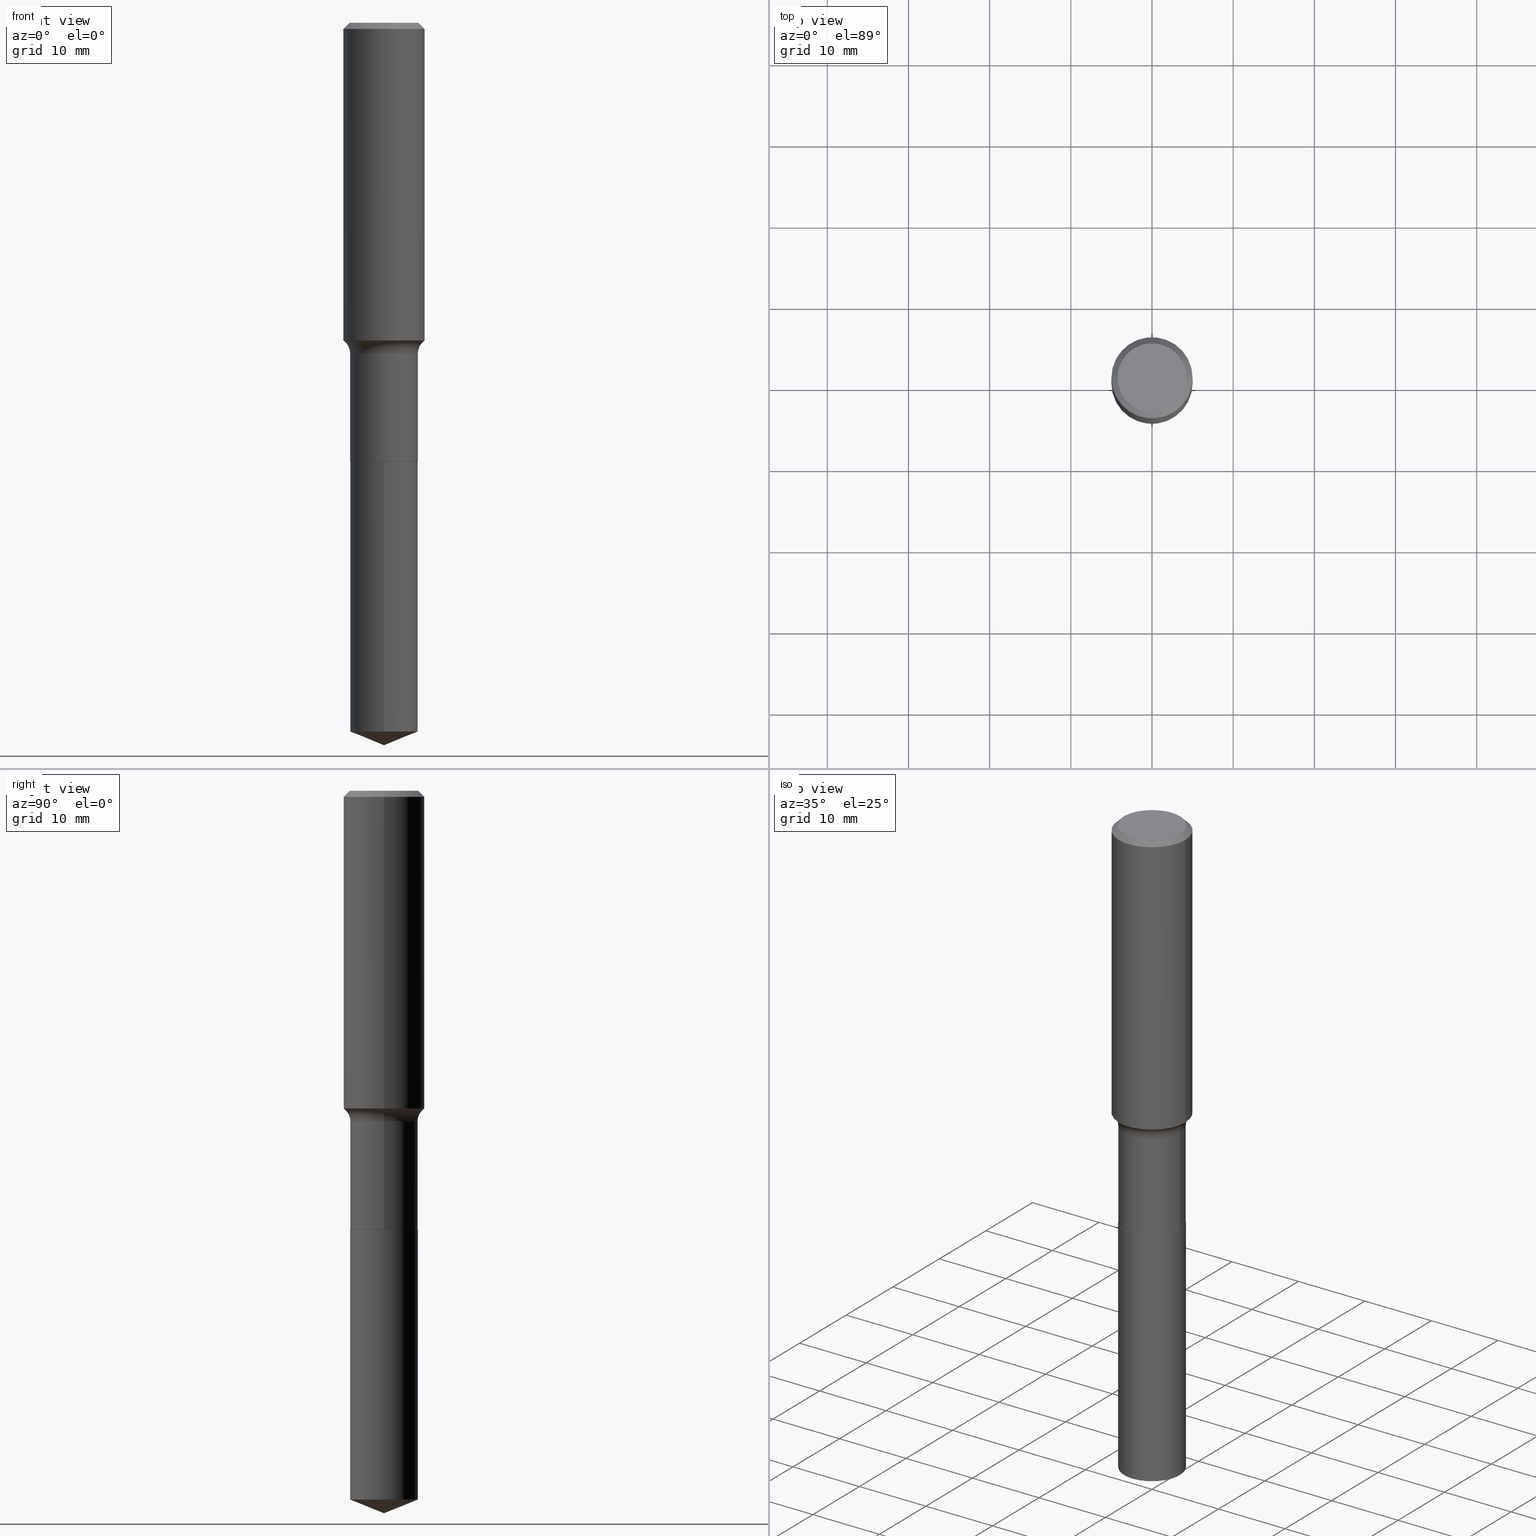
[diagram: canonical four-view strip — front | top / right | iso, engineering-drawing reading convention]
A machine part, canonical four-view strip (front | top / right | iso — engineering-drawing reading convention). The complete STEP part file that produces these views, byte-faithful:
ISO-10303-21;
HEADER;
FILE_DESCRIPTION (( 'STEP AP203' ),
    '1' );
FILE_NAME ('56816.STEP',
    '2024-04-19T14:05:40',
    ( '' ),
    ( '' ),
    'SwSTEP 2.0',
    'SolidWorks 2023',
    '' );
FILE_SCHEMA (( 'CONFIG_CONTROL_DESIGN' ));
ENDSEC;

DATA;
#1 = AXIS2_PLACEMENT_3D ( 'NONE', #44, #156, #197 ) ;
#2 = CYLINDRICAL_SURFACE ( 'NONE', #263, 0.1968500000000001082 ) ;
#3 = CARTESIAN_POINT ( 'NONE',  ( 1.165645358014496035E-15, 0.1640499999999925906, -2.125900000000000567 ) ) ;
#4 = APPROVAL_STATUS ( 'not_yet_approved' ) ;
#5 = PLANE ( 'NONE',  #133 ) ;
#6 = ORIENTED_EDGE ( 'NONE', *, *, #440, .T. ) ;
#7 = DIRECTION ( 'NONE',  ( 1.000000000000000000, -6.982962677686265922E-15, 0.000000000000000000 ) ) ;
#8 = EDGE_LOOP ( 'NONE', ( #236, #464, #397 ) ) ;
#9 = ORIENTED_EDGE ( 'NONE', *, *, #111, .F. ) ;
#10 = CARTESIAN_POINT ( 'NONE',  ( 5.198822135068982087E-29, -7.422540178246643119E-15, -2.125899999999999679 ) ) ;
#11 = EDGE_CURVE ( 'NONE', #192, #313, #253, .T. ) ;
#12 = AXIS2_PLACEMENT_3D ( 'NONE', #353, #159, #55 ) ;
#13 = LINE ( 'NONE', #79, #163 ) ;
#14 = DIRECTION ( 'NONE',  ( 1.000000000000000000, -6.982962677686265922E-15, 4.876176775795935793E-29 ) ) ;
#15 = ORIENTED_EDGE ( 'NONE', *, *, #11, .T. ) ;
#16 = CARTESIAN_POINT ( 'NONE',  ( 5.198822135068982087E-29, -7.422540178246643119E-15, -2.125899999999999679 ) ) ;
#17 = EDGE_CURVE ( 'NONE', #229, #199, #350, .T. ) ;
#18 = DIRECTION ( 'NONE',  ( 1.000000000000000000, -6.982962677686266711E-15, 0.000000000000000000 ) ) ;
#19 = ORIENTED_EDGE ( 'NONE', *, *, #17, .F. ) ;
#20 = DIRECTION ( 'NONE',  ( -2.445468806185136597E-29, 3.491481338843145583E-15, 1.000000000000000000 ) ) ;
#21 = FACE_OUTER_BOUND ( 'NONE', #433, .T. ) ;
#22 = ORIENTED_EDGE ( 'NONE', *, *, #59, .F. ) ;
#23 = DIRECTION ( 'NONE',  ( -2.445468806185136597E-29, 3.491481338843145583E-15, 1.000000000000000000 ) ) ;
#24 = ORIENTED_EDGE ( 'NONE', *, *, #326, .F. ) ;
#25 = DIRECTION ( 'NONE',  ( -6.982962677686266711E-15, -1.000000000000000000, 3.498761904101810992E-15 ) ) ;
#26 = ADVANCED_FACE ( 'NONE', ( #335 ), #5, .F. ) ;
#27 = CARTESIAN_POINT ( 'NONE',  ( 0.000000000000000000, 0.000000000000000000, 0.000000000000000000 ) ) ;
#28 = AXIS2_PLACEMENT_3D ( 'NONE', #212, #219, #315 ) ;
#29 = CC_DESIGN_PERSON_AND_ORGANIZATION_ASSIGNMENT ( #117, #295, ( #262 ) ) ;
#30 = ORIENTED_EDGE ( 'NONE', *, *, #287, .T. ) ;
#31 = PERSON ( 'UNSPECIFIED', 'UNSPECIFIED', 'UNSPECIFIED', ('UNSPECIFIED'), ('UNSPECIFIED'), ('UNSPECIFIED') ) ;
#32 = DIRECTION ( 'NONE',  ( 1.000000000000000000, -6.982962677686266711E-15, 0.000000000000000000 ) ) ;
#33 = PERSON_AND_ORGANIZATION_ROLE ( 'design_owner' ) ;
#34 = AXIS2_PLACEMENT_3D ( 'NONE', #435, #147, #179 ) ;
#35 = AXIS2_PLACEMENT_3D ( 'NONE', #334, #308, #91 ) ;
#36 = ADVANCED_FACE ( 'NONE', ( #164 ), #2, .T. ) ;
#37 = CARTESIAN_POINT ( 'NONE',  ( 8.568824432335487934E-29, -1.223359197853089063E-14, -3.503899999999999793 ) ) ;
#38 = CALENDAR_DATE ( 2024, 19, 4 ) ;
#39 = CALENDAR_DATE ( 2024, 19, 4 ) ;
#40 = DIRECTION ( 'NONE',  ( 1.000000000000000000, -6.982962677686265922E-15, 0.000000000000000000 ) ) ;
#41 = DATE_AND_TIME ( #77, #47 ) ;
#42 = CARTESIAN_POINT ( 'NONE',  ( -0.1640500000000000014, 1.165645358014444365E-15, -8.069513015563172164E-30 ) ) ;
#43 = APPLICATION_CONTEXT ( 'configuration controlled 3d designs of mechanical parts and assemblies' ) ;
#44 = CARTESIAN_POINT ( 'NONE',  ( -8.771120741596703317E-28, 1.252238223672896506E-13, 35.86617874015747987 ) ) ;
#45 = AXIS2_PLACEMENT_3D ( 'NONE', #183, #258, #137 ) ;
#46 = ORIENTED_EDGE ( 'NONE', *, *, #319, .T. ) ;
#47 = LOCAL_TIME ( 10, 5, 40.00000000000000000, #456 ) ;
#48 = FACE_OUTER_BOUND ( 'NONE', #110, .T. ) ;
#49 = ORIENTED_EDGE ( 'NONE', *, *, #93, .F. ) ;
#50 = CARTESIAN_POINT ( 'NONE',  ( 7.220858017463213864E-31, -1.030947152326917226E-16, -0.02952750000000021330 ) ) ;
#51 = ORIENTED_EDGE ( 'NONE', *, *, #107, .T. ) ;
#52 = FACE_OUTER_BOUND ( 'NONE', #256, .T. ) ;
#53 = CONICAL_SURFACE ( 'NONE', #1, 97.44436430772888968, 1.186823891356146632 ) ;
#54 = ORIENTED_EDGE ( 'NONE', *, *, #72, .T. ) ;
#55 = DIRECTION ( 'NONE',  ( -6.982962677686265133E-15, -1.000000000000000000, 3.330506545156066257E-15 ) ) ;
#56 = ORIENTED_EDGE ( 'NONE', *, *, #427, .T. ) ;
#57 = DIRECTION ( 'NONE',  ( -2.445468806185136877E-29, 3.491481338843145188E-15, 1.000000000000000000 ) ) ;
#58 = DIRECTION ( 'NONE',  ( -2.445468806185136597E-29, 3.491481338843145583E-15, 1.000000000000000000 ) ) ;
#59 = EDGE_CURVE ( 'NONE', #244, #192, #237, .T. ) ;
#60 = CARTESIAN_POINT ( 'NONE',  ( 3.923265605762814069E-29, -5.601383511906057232E-15, -1.604299999999999615 ) ) ;
#61 = EDGE_LOOP ( 'NONE', ( #22, #301, #414, #71 ) ) ;
#62 = VECTOR ( 'NONE', #129, 39.37007874015748143 ) ;
#63 = PRODUCT_DEFINITION_FORMATION_WITH_SPECIFIED_SOURCE ( 'ANY', '', #485, .NOT_KNOWN. ) ;
#64 = PLANE ( 'NONE',  #45 ) ;
#65 = PLANE ( 'NONE',  #271 ) ;
#66 = FACE_OUTER_BOUND ( 'NONE', #307, .T. ) ;
#67 = TOROIDAL_SURFACE ( 'NONE', #186, 0.2420499999999999596, 0.07799999999999999989 ) ;
#68 = APPLICATION_CONTEXT ( 'configuration controlled 3d designs of mechanical parts and assemblies' ) ;
#69 = CC_DESIGN_APPROVAL ( #331, ( #262 ) ) ;
#70 = DIRECTION ( 'NONE',  ( -2.445468806185136597E-29, 3.491481338843145583E-15, 1.000000000000000000 ) ) ;
#71 = ORIENTED_EDGE ( 'NONE', *, *, #11, .F. ) ;
#72 = EDGE_CURVE ( 'NONE', #387, #172, #254, .T. ) ;
#73 = SHAPE_DEFINITION_REPRESENTATION ( #327, #169 ) ;
#74 = CLOSED_SHELL ( 'NONE', ( #188, #201, #36, #207, #481, #476, #104, #252, #333, #447, #26, #398 ) ) ;
#75 = AXIS2_PLACEMENT_3D ( 'NONE', #482, #488, #40 ) ;
#76 = DIRECTION ( 'NONE',  ( -2.445468806185136597E-29, 3.491481338843145583E-15, 1.000000000000000000 ) ) ;
#77 = CALENDAR_DATE ( 2024, 19, 4 ) ;
#78 = DATE_TIME_ROLE ( 'classification_date' ) ;
#79 = CARTESIAN_POINT ( 'NONE',  ( -1.145555027274379992E-15, -0.1640500000000074121, -2.125899999999999235 ) ) ;
#80 = APPROVAL ( #371, 'UNSPECIFIED' ) ;
#81 = DIRECTION ( 'NONE',  ( -2.445510554620705079E-29, 3.491421552707238058E-15, 1.000000000000000000 ) ) ;
#82 = CLOSED_SHELL ( 'NONE', ( #312, #389, #448, #344, #152 ) ) ;
#83 = CIRCLE ( 'NONE', #35, 0.1640500000000000291 ) ;
#84 = ORIENTED_EDGE ( 'NONE', *, *, #96, .F. ) ;
#85 = LINE ( 'NONE', #3, #62 ) ;
#86 = CARTESIAN_POINT ( 'NONE',  ( 0.2420499999999999596, -7.291609628040016941E-15, -1.604299999999999615 ) ) ;
#87 = ORIENTED_EDGE ( 'NONE', *, *, #326, .T. ) ;
#88 = DIRECTION ( 'NONE',  ( 0.7071067811866441621, -2.468850131083269169E-15, 0.7071067811864508723 ) ) ;
#89 =( NAMED_UNIT ( * ) PLANE_ANGLE_UNIT ( ) SI_UNIT ( $, .RADIAN. ) );
#90 = VERTEX_POINT ( 'NONE', #171 ) ;
#91 = DIRECTION ( 'NONE',  ( 1.000000000000000000, -6.982962677686269077E-15, 0.000000000000000000 ) ) ;
#92 = CIRCLE ( 'NONE', #231, 0.1673224999999999851 ) ;
#93 = EDGE_CURVE ( 'NONE', #244, #199, #417, .T. ) ;
#94 = CARTESIAN_POINT ( 'NONE',  ( -0.1968500000000001082, 1.398703375343757985E-15, -9.682923725166787881E-30 ) ) ;
#95 = DIRECTION ( 'NONE',  ( 1.000000000000000000, -6.982962677686266711E-15, 4.876176775795935793E-29 ) ) ;
#96 = EDGE_CURVE ( 'NONE', #90, #138, #191, .T. ) ;
#97 = VERTEX_POINT ( 'NONE', #443 ) ;
#98 = CARTESIAN_POINT ( 'NONE',  ( 8.568825988853564616E-29, -1.223359197853089063E-14, -3.503899999999999793 ) ) ;
#99 = EDGE_LOOP ( 'NONE', ( #403, #303 ) ) ;
#100 = ORIENTED_EDGE ( 'NONE', *, *, #379, .F. ) ;
#101 = VECTOR ( 'NONE', #250, 39.37007874015748143 ) ;
#102 = CARTESIAN_POINT ( 'NONE',  ( -1.001697619218021790E-46, 1.430158722866389718E-32, 4.096137381448108366E-18 ) ) ;
#103 = EDGE_CURVE ( 'NONE', #161, #384, #249, .T. ) ;
#104 = ADVANCED_FACE ( 'NONE', ( #360 ), #375, .F. ) ;
#105 = ORIENTED_EDGE ( 'NONE', *, *, #245, .F. ) ;
#106 = DIRECTION ( 'NONE',  ( -1.000000000000000000, 6.982962677686265922E-15, -4.876176775795935793E-29 ) ) ;
#107 = EDGE_CURVE ( 'NONE', #437, #172, #347, .T. ) ;
#108 = CONICAL_SURFACE ( 'NONE', #75, 0.1635500000000000009, 0.7853981633975849475 ) ;
#109 = COORDINATED_UNIVERSAL_TIME_OFFSET ( 5, 0, .BEHIND. ) ;
#110 = EDGE_LOOP ( 'NONE', ( #221, #346, #149, #158 ) ) ;
#111 = EDGE_CURVE ( 'NONE', #429, #229, #460, .T. ) ;
#112 = APPLICATION_PROTOCOL_DEFINITION ( 'international standard', 'config_control_design', 1994, #68 ) ;
#113 = FACE_OUTER_BOUND ( 'NONE', #61, .T. ) ;
#114 = AXIS2_PLACEMENT_3D ( 'NONE', #200, #343, #7 ) ;
#115 = MANIFOLD_SOLID_BREP ( 'Body-Move/Copy2[2]', #74 ) ;
#116 = EDGE_CURVE ( 'NONE', #313, #199, #276, .T. ) ;
#117 = PERSON_AND_ORGANIZATION ( #31, #444 ) ;
#118 = ORIENTED_EDGE ( 'NONE', *, *, #96, .T. ) ;
#119 = CARTESIAN_POINT ( 'NONE',  ( 0.000000000000000000, 0.000000000000000000, 0.000000000000000000 ) ) ;
#120 = DIRECTION ( 'NONE',  ( -2.438088387897960049E-29, 3.491481338843145188E-15, 1.000000000000000000 ) ) ;
#121 = ORIENTED_EDGE ( 'NONE', *, *, #486, .T. ) ;
#122 = CARTESIAN_POINT ( 'NONE',  ( -0.1635500000000000009, -6.260447533910998667E-15, -2.125899999999999679 ) ) ;
#123 = AXIS2_PLACEMENT_3D ( 'NONE', #242, #81, #468 ) ;
#124 = EDGE_LOOP ( 'NONE', ( #6, #251, #100, #425 ) ) ;
#125 = AXIS2_PLACEMENT_3D ( 'NONE', #27, #323, #480 ) ;
#126 = CARTESIAN_POINT ( 'NONE',  ( 0.1635500000000000009, -8.564603724182230985E-15, -2.125899999999999679 ) ) ;
#127 =( CONVERSION_BASED_UNIT ( 'INCH', #277 ) LENGTH_UNIT ( ) NAMED_UNIT ( #401 ) );
#128 = ORIENTED_EDGE ( 'NONE', *, *, #319, .F. ) ;
#129 = DIRECTION ( 'NONE',  ( -2.445510554620705359E-29, 3.491421552707238452E-15, 1.000000000000000000 ) ) ;
#130 = ORIENTED_EDGE ( 'NONE', *, *, #379, .T. ) ;
#131 = ORIENTED_EDGE ( 'NONE', *, *, #294, .F. ) ;
#132 = FACE_OUTER_BOUND ( 'NONE', #289, .T. ) ;
#133 = AXIS2_PLACEMENT_3D ( 'NONE', #300, #120, #14 ) ;
#134 = AXIS2_PLACEMENT_3D ( 'NONE', #102, #20, #217 ) ;
#135 = EDGE_LOOP ( 'NONE', ( #49, #241, #15, #361 ) ) ;
#136 = CC_DESIGN_APPROVAL ( #305, ( #240 ) ) ;
#137 = DIRECTION ( 'NONE',  ( 6.982962677686265922E-15, 1.000000000000000000, -3.491421552707238452E-15 ) ) ;
#138 = VERTEX_POINT ( 'NONE', #214 ) ;
#139 = CARTESIAN_POINT ( 'NONE',  ( 0.000000000000000000, 0.000000000000000000, 0.000000000000000000 ) ) ;
#140 = ORIENTED_EDGE ( 'NONE', *, *, #440, .F. ) ;
#141 = CARTESIAN_POINT ( 'NONE',  ( 5.197599400665889285E-29, -7.420794437577220826E-15, -2.125399999999999956 ) ) ;
#142 = AXIS2_PLACEMENT_3D ( 'NONE', #317, #174, #446 ) ;
#143 = CIRCLE ( 'NONE', #404, 0.1635500000000000009 ) ;
#144 = DIRECTION ( 'NONE',  ( 2.438088387897960049E-29, -3.491481338843145188E-15, -1.000000000000000000 ) ) ;
#145 = DESIGN_CONTEXT ( 'detailed design', #68, 'design' ) ;
#146 = CC_DESIGN_SECURITY_CLASSIFICATION ( #240, ( #63 ) ) ;
#147 = DIRECTION ( 'NONE',  ( -2.445510554620705079E-29, 3.491421552707238058E-15, 1.000000000000000000 ) ) ;
#148 = DIRECTION ( 'NONE',  ( -2.445468806185136597E-29, 3.491481338843145583E-15, 1.000000000000000000 ) ) ;
#149 = ORIENTED_EDGE ( 'NONE', *, *, #294, .T. ) ;
#150 = APPROVAL_STATUS ( 'not_yet_approved' ) ;
#151 = DATE_TIME_ROLE ( 'creation_date' ) ;
#152 = ADVANCED_FACE ( 'NONE', ( #21 ), #64, .F. ) ;
#153 = APPROVAL_ROLE ( '' ) ;
#154 = APPROVAL_DATE_TIME ( #41, #331 ) ;
#155 = DIRECTION ( 'NONE',  ( -2.445468806185136597E-29, 3.491481338843145583E-15, 1.000000000000000000 ) ) ;
#156 = DIRECTION ( 'NONE',  ( -2.445510554620705079E-29, 3.491421552707238058E-15, 1.000000000000000000 ) ) ;
#157 = EDGE_CURVE ( 'NONE', #161, #342, #220, .T. ) ;
#158 = ORIENTED_EDGE ( 'NONE', *, *, #232, .F. ) ;
#159 = DIRECTION ( 'NONE',  ( -2.445510554620705079E-29, 3.491421552707238058E-15, 1.000000000000000000 ) ) ;
#160 = DIRECTION ( 'NONE',  ( 1.000000000000000000, -6.982962677686274599E-15, 0.000000000000000000 ) ) ;
#161 = VERTEX_POINT ( 'NONE', #37 ) ;
#162 = DIRECTION ( 'NONE',  ( -2.445468806185136597E-29, 3.491481338843145583E-15, 1.000000000000000000 ) ) ;
#163 = VECTOR ( 'NONE', #166, 39.37007874015748143 ) ;
#164 = FACE_OUTER_BOUND ( 'NONE', #406, .T. ) ;
#165 = ORIENTED_EDGE ( 'NONE', *, *, #195, .T. ) ;
#166 = DIRECTION ( 'NONE',  ( -2.445510554620705359E-29, 3.491421552707238452E-15, 1.000000000000000000 ) ) ;
#167 = CALENDAR_DATE ( 2024, 19, 4 ) ;
#168 = DIRECTION ( 'NONE',  ( -2.445510554620705079E-29, 3.491421552707238058E-15, 1.000000000000000000 ) ) ;
#169 = ADVANCED_BREP_SHAPE_REPRESENTATION ( '56816', ( #198, #115, #453 ), #225 ) ;
#170 = EDGE_CURVE ( 'NONE', #192, #172, #490, .T. ) ;
#171 = CARTESIAN_POINT ( 'NONE',  ( 1.165645358014528181E-15, 0.1640499999999925906, -2.125900000000000567 ) ) ;
#172 = VERTEX_POINT ( 'NONE', #374 ) ;
#173 = VECTOR ( 'NONE', #463, 39.37007874015748143 ) ;
#174 = DIRECTION ( 'NONE',  ( -2.445468806185136597E-29, 3.491481338843145583E-15, 1.000000000000000000 ) ) ;
#175 = CIRCLE ( 'NONE', #255, 0.1640500000000000014 ) ;
#176 = ORIENTED_EDGE ( 'NONE', *, *, #265, .F. ) ;
#177 = CARTESIAN_POINT ( 'NONE',  ( -8.771120741596703317E-28, 1.252238223672896506E-13, 35.86617874015747987 ) ) ;
#178 = AXIS2_PLACEMENT_3D ( 'NONE', #177, #365, #25 ) ;
#179 = DIRECTION ( 'NONE',  ( -6.982962677686265133E-15, -1.000000000000000000, 3.330506545156066257E-15 ) ) ;
#180 = ORIENTED_EDGE ( 'NONE', *, *, #111, .T. ) ;
#181 = CARTESIAN_POINT ( 'NONE',  ( -0.1968500000000000527, -1.342561542734275109E-15, -0.02952750000000021330 ) ) ;
#182 = PERSON_AND_ORGANIZATION_ROLE ( 'creator' ) ;
#183 = CARTESIAN_POINT ( 'NONE',  ( 5.198822135068982087E-29, -7.422540178246643119E-15, -2.125899999999999679 ) ) ;
#184 = ORIENTED_EDGE ( 'NONE', *, *, #232, .T. ) ;
#185 = PERSON_AND_ORGANIZATION ( #31, #444 ) ;
#186 = AXIS2_PLACEMENT_3D ( 'NONE', #325, #76, #492 ) ;
#187 = FACE_OUTER_BOUND ( 'NONE', #8, .T. ) ;
#188 = ADVANCED_FACE ( 'NONE', ( #328 ), #108, .T. ) ;
#189 = COORDINATED_UNIVERSAL_TIME_OFFSET ( 5, 0, .BEHIND. ) ;
#190 = DIRECTION ( 'NONE',  ( 2.445468806185136597E-29, -3.491481338843145583E-15, -1.000000000000000000 ) ) ;
#191 = CIRCLE ( 'NONE', #34, 0.1640500000000000014 ) ;
#192 = VERTEX_POINT ( 'NONE', #459 ) ;
#193 = EDGE_CURVE ( 'NONE', #192, #244, #452, .T. ) ;
#194 = DATE_AND_TIME ( #38, #351 ) ;
#195 = EDGE_CURVE ( 'NONE', #172, #437, #297, .T. ) ;
#196 = DIRECTION ( 'NONE',  ( 1.000000000000000000, -6.982962677686266711E-15, 0.000000000000000000 ) ) ;
#197 = DIRECTION ( 'NONE',  ( -6.982962677686266711E-15, -1.000000000000000000, 3.498761904101810992E-15 ) ) ;
#198 = MANIFOLD_SOLID_BREP ( 'Body-Move/Copy2[1]', #82 ) ;
#199 = VERTEX_POINT ( 'NONE', #227 ) ;
#200 = CARTESIAN_POINT ( 'NONE',  ( 5.198822135068982087E-29, -7.422540178246643119E-15, -2.125899999999999679 ) ) ;
#201 = ADVANCED_FACE ( 'NONE', ( #230 ), #412, .T. ) ;
#202 = CARTESIAN_POINT ( 'NONE',  ( 0.1640499999999999459, -6.746938539180489683E-15, -1.604299999999999837 ) ) ;
#203 = ORIENTED_EDGE ( 'NONE', *, *, #436, .F. ) ;
#204 = DIRECTION ( 'NONE',  ( -6.982962677686265133E-15, -1.000000000000000000, 3.330506545156066257E-15 ) ) ;
#205 = AXIS2_PLACEMENT_3D ( 'NONE', #141, #278, #477 ) ;
#206 = ORIENTED_EDGE ( 'NONE', *, *, #261, .T. ) ;
#207 = ADVANCED_FACE ( 'NONE', ( #113 ), #67, .F. ) ;
#208 = APPROVAL_PERSON_ORGANIZATION ( #291, #80, #450 ) ;
#209 = CYLINDRICAL_SURFACE ( 'NONE', #337, 0.1968500000000001082 ) ;
#210 = CC_DESIGN_PERSON_AND_ORGANIZATION_ASSIGNMENT ( #487, #228, ( #240 ) ) ;
#211 = ORIENTED_EDGE ( 'NONE', *, *, #386, .T. ) ;
#212 = CARTESIAN_POINT ( 'NONE',  ( 8.406646011278087519E-29, -1.200230590345424907E-14, -3.437619497651742684 ) ) ;
#213 = UNCERTAINTY_MEASURE_WITH_UNIT (LENGTH_MEASURE( 1.000000000000000082E-05 ), #127, 'distance_accuracy_value', 'NONE');
#214 = CARTESIAN_POINT ( 'NONE',  ( -1.145555027274379992E-15, -0.1640500000000074121, -2.125899999999999235 ) ) ;
#215 = VECTOR ( 'NONE', #465, 39.37007874015748143 ) ;
#216 = EDGE_LOOP ( 'NONE', ( #423, #475, #483, #352 ) ) ;
#217 = DIRECTION ( 'NONE',  ( 1.000000000000000000, -6.982962677686267499E-15, 4.876294436782262290E-29 ) ) ;
#218 = DIRECTION ( 'NONE',  ( 7.105427357601001859E-15, 1.000000000000000000, -3.491481338843145583E-15 ) ) ;
#219 = DIRECTION ( 'NONE',  ( -2.445510554620705079E-29, 3.491421552707238058E-15, 1.000000000000000000 ) ) ;
#220 = LINE ( 'NONE', #358, #442 ) ;
#221 = ORIENTED_EDGE ( 'NONE', *, *, #261, .F. ) ;
#222 = CYLINDRICAL_SURFACE ( 'NONE', #125, 0.1640500000000000014 ) ;
#223 = DIRECTION ( 'NONE',  ( 0.000000000000000000, 0.000000000000000000, 1.000000000000000000 ) ) ;
#224 = ORIENTED_EDGE ( 'NONE', *, *, #72, .F. ) ;
#225 =( GEOMETRIC_REPRESENTATION_CONTEXT ( 3 ) GLOBAL_UNCERTAINTY_ASSIGNED_CONTEXT ( ( #213 ) ) GLOBAL_UNIT_ASSIGNED_CONTEXT ( ( #127, #89, #363 ) ) REPRESENTATION_CONTEXT ( 'NONE', 'WORKASPACE' ) );
#226 = CC_DESIGN_PERSON_AND_ORGANIZATION_ASSIGNMENT ( #316, #449, ( #63 ) ) ;
#227 = CARTESIAN_POINT ( 'NONE',  ( -0.1640499999999999459, -5.345443616727195650E-15, -1.604299999999999837 ) ) ;
#228 = PERSON_AND_ORGANIZATION_ROLE ( 'classification_officer' ) ;
#229 = VERTEX_POINT ( 'NONE', #233 ) ;
#230 = FACE_OUTER_BOUND ( 'NONE', #471, .T. ) ;
#231 = AXIS2_PLACEMENT_3D ( 'NONE', #281, #58, #356 ) ;
#232 = EDGE_CURVE ( 'NONE', #229, #429, #83, .T. ) ;
#233 = CARTESIAN_POINT ( 'NONE',  ( -0.1640500000000000291, -5.345443616727195650E-15, -2.125399999999999956 ) ) ;
#234 = CARTESIAN_POINT ( 'NONE',  ( 0.1673224999999999851, -1.300749711163072594E-15, 4.096137381456741925E-18 ) ) ;
#235 = ORIENTED_EDGE ( 'NONE', *, *, #427, .F. ) ;
#236 = ORIENTED_EDGE ( 'NONE', *, *, #103, .F. ) ;
#237 = CIRCLE ( 'NONE', #357, 0.1968500000000001915 ) ;
#238 = DIRECTION ( 'NONE',  ( 1.000000000000000000, -6.982962677686265922E-15, 0.000000000000000000 ) ) ;
#239 = AXIS2_PLACEMENT_3D ( 'NONE', #416, #148, #32 ) ;
#240 = SECURITY_CLASSIFICATION ( '', '', #413 ) ;
#241 = ORIENTED_EDGE ( 'NONE', *, *, #193, .F. ) ;
#242 = CARTESIAN_POINT ( 'NONE',  ( 5.198822135068982087E-29, -7.422540178246643119E-15, -2.125899999999999679 ) ) ;
#243 = DIRECTION ( 'NONE',  ( 1.000000000000000000, -6.982962677686266711E-15, 4.876176775795935793E-29 ) ) ;
#244 = VERTEX_POINT ( 'NONE', #299 ) ;
#245 = EDGE_CURVE ( 'NONE', #410, #458, #311, .T. ) ;
#246 = CARTESIAN_POINT ( 'NONE',  ( -1.145555027274347452E-15, -0.1640500000000119363, -3.437619497651742240 ) ) ;
#247 = CIRCLE ( 'NONE', #28, 0.1640500000000000014 ) ;
#248 = DIRECTION ( 'NONE',  ( 1.000000000000000000, -6.982962677686266711E-15, 4.876176775795935232E-29 ) ) ;
#249 = LINE ( 'NONE', #98, #101 ) ;
#250 = DIRECTION ( 'NONE',  ( 6.588037525764795235E-15, 0.9271838545667896447, 0.3746065934159064637 ) ) ;
#251 = ORIENTED_EDGE ( 'NONE', *, *, #280, .T. ) ;
#252 = ADVANCED_FACE ( 'NONE', ( #470 ), #209, .T. ) ;
#253 = CIRCLE ( 'NONE', #320, 0.07799999999999995826 ) ;
#254 = LINE ( 'NONE', #366, #472 ) ;
#255 = AXIS2_PLACEMENT_3D ( 'NONE', #16, #168, #204 ) ;
#256 = EDGE_LOOP ( 'NONE', ( #370, #30, #211, #84 ) ) ;
#257 = LOCAL_TIME ( 10, 5, 40.00000000000000000, #109 ) ;
#258 = DIRECTION ( 'NONE',  ( 2.445510554620704519E-29, -3.491421552707238452E-15, -1.000000000000000000 ) ) ;
#259 = ORIENTED_EDGE ( 'NONE', *, *, #195, .F. ) ;
#260 = DIRECTION ( 'NONE',  ( -2.445468806185136597E-29, 3.491481338843145583E-15, 1.000000000000000000 ) ) ;
#261 = EDGE_CURVE ( 'NONE', #410, #229, #267, .T. ) ;
#262 = PRODUCT_DEFINITION ( 'UNKNOWN', '', #63, #145 ) ;
#263 = AXIS2_PLACEMENT_3D ( 'NONE', #273, #155, #95 ) ;
#264 = AXIS2_PLACEMENT_3D ( 'NONE', #405, #364, #402 ) ;
#265 = EDGE_CURVE ( 'NONE', #199, #313, #270, .T. ) ;
#266 = ORIENTED_EDGE ( 'NONE', *, *, #441, .F. ) ;
#267 = LINE ( 'NONE', #122, #215 ) ;
#268 = DIRECTION ( 'NONE',  ( -6.982962677686266711E-15, -1.000000000000000000, 3.491481338843145583E-15 ) ) ;
#269 = CARTESIAN_POINT ( 'NONE',  ( 3.923265605762814630E-29, -5.601383511906058021E-15, -1.604299999999999837 ) ) ;
#270 = CIRCLE ( 'NONE', #383, 0.1640499999999999459 ) ;
#271 = AXIS2_PLACEMENT_3D ( 'NONE', #286, #144, #106 ) ;
#272 = DIRECTION ( 'NONE',  ( -2.445468806185136597E-29, 3.491481338843145583E-15, 1.000000000000000000 ) ) ;
#273 = CARTESIAN_POINT ( 'NONE',  ( 0.000000000000000000, 0.000000000000000000, 0.000000000000000000 ) ) ;
#274 = LINE ( 'NONE', #126, #349 ) ;
#275 = LINE ( 'NONE', #94, #432 ) ;
#276 = CIRCLE ( 'NONE', #264, 0.1640499999999999459 ) ;
#277 = LENGTH_MEASURE_WITH_UNIT ( LENGTH_MEASURE( 0.02539999999999999897 ), #310 );
#278 = DIRECTION ( 'NONE',  ( -2.445468806185136597E-29, 3.491481338843145583E-15, 1.000000000000000000 ) ) ;
#279 = EDGE_LOOP ( 'NONE', ( #469, #428, #140 ) ) ;
#280 = EDGE_CURVE ( 'NONE', #384, #90, #85, .T. ) ;
#281 = CARTESIAN_POINT ( 'NONE',  ( -1.001697619218021790E-46, 1.430158722866389718E-32, 4.096137381448108366E-18 ) ) ;
#282 = CARTESIAN_POINT ( 'NONE',  ( 0.000000000000000000, 0.000000000000000000, 0.000000000000000000 ) ) ;
#283 = ORIENTED_EDGE ( 'NONE', *, *, #17, .T. ) ;
#284 = DIRECTION ( 'NONE',  ( -6.474490251793183362E-15, -0.9271838545667869802, 0.3746065934159129029 ) ) ;
#285 = AXIS2_PLACEMENT_3D ( 'NONE', #50, #348, #426 ) ;
#286 = CARTESIAN_POINT ( 'NONE',  ( -5.008488096090108951E-47, 7.150793614331948590E-33, 2.048068690724054183E-18 ) ) ;
#287 = EDGE_CURVE ( 'NONE', #384, #342, #376, .T. ) ;
#288 = DIRECTION ( 'NONE',  ( 0.7071067811865455743, -7.319954787623248157E-15, -0.7071067811865493491 ) ) ;
#289 = EDGE_LOOP ( 'NONE', ( #224, #203, #56, #51 ) ) ;
#290 = CARTESIAN_POINT ( 'NONE',  ( 7.220858017463213864E-31, -1.030947152326917226E-16, -0.02952750000000021330 ) ) ;
#291 = PERSON_AND_ORGANIZATION ( #31, #444 ) ;
#292 = AXIS2_PLACEMENT_3D ( 'NONE', #290, #70, #196 ) ;
#293 = DATE_AND_TIME ( #39, #340 ) ;
#294 = EDGE_CURVE ( 'NONE', #458, #429, #274, .T. ) ;
#295 = PERSON_AND_ORGANIZATION_ROLE ( 'creator' ) ;
#296 = EDGE_LOOP ( 'NONE', ( #87, #206, #9, #131 ) ) ;
#297 = CIRCLE ( 'NONE', #292, 0.1968500000000000527 ) ;
#298 = DIRECTION ( 'NONE',  ( -1.000000000000000000, 6.982962677686266711E-15, 0.000000000000000000 ) ) ;
#299 = CARTESIAN_POINT ( 'NONE',  ( -0.1968500000000001915, -3.980731745579616320E-15, -1.540731454318978955 ) ) ;
#300 = CARTESIAN_POINT ( 'NONE',  ( 5.198822135068982087E-29, -7.422540178246643119E-15, -2.125899999999999679 ) ) ;
#301 = ORIENTED_EDGE ( 'NONE', *, *, #93, .T. ) ;
#302 = CARTESIAN_POINT ( 'NONE',  ( 5.198822135068982087E-29, -7.422540178246643119E-15, -2.125899999999999679 ) ) ;
#303 = ORIENTED_EDGE ( 'NONE', *, *, #441, .T. ) ;
#304 = DIRECTION ( 'NONE',  ( -2.445510554620705079E-29, 3.491421552707238058E-15, 1.000000000000000000 ) ) ;
#305 = APPROVAL ( #150, 'UNSPECIFIED' ) ;
#306 = DIRECTION ( 'NONE',  ( 1.000000000000000000, -6.982962677686265922E-15, 0.000000000000000000 ) ) ;
#307 = EDGE_LOOP ( 'NONE', ( #180, #283, #367, #128 ) ) ;
#308 = DIRECTION ( 'NONE',  ( -2.445468806185136597E-29, 3.491481338843145583E-15, 1.000000000000000000 ) ) ;
#309 = DIRECTION ( 'NONE',  ( 1.000000000000000000, -6.982962677686265922E-15, 4.883557194083111780E-29 ) ) ;
#310 =( LENGTH_UNIT ( ) NAMED_UNIT ( * ) SI_UNIT ( $, .METRE. ) );
#311 = CIRCLE ( 'NONE', #359, 0.1635500000000000009 ) ;
#312 = ADVANCED_FACE ( 'NONE', ( #420 ), #421, .T. ) ;
#313 = VERTEX_POINT ( 'NONE', #202 ) ;
#314 = CYLINDRICAL_SURFACE ( 'NONE', #341, 0.1640500000000000014 ) ;
#315 = DIRECTION ( 'NONE',  ( -6.982962677686265133E-15, -1.000000000000000000, 3.330506545156066257E-15 ) ) ;
#316 = PERSON_AND_ORGANIZATION ( #31, #444 ) ;
#317 = CARTESIAN_POINT ( 'NONE',  ( 7.220858017463213864E-31, -1.030947152326917226E-16, -0.02952750000000021330 ) ) ;
#318 = DIRECTION ( 'NONE',  ( -0.7071067811865455743, 2.468850131082236945E-15, -0.7071067811865493491 ) ) ;
#319 = EDGE_CURVE ( 'NONE', #429, #313, #391, .T. ) ;
#320 = AXIS2_PLACEMENT_3D ( 'NONE', #86, #268, #160 ) ;
#321 = CONICAL_SURFACE ( 'NONE', #114, 0.1635500000000000009, 0.7853981633975849475 ) ;
#322 = CARTESIAN_POINT ( 'NONE',  ( -0.2420499999999999596, -3.881514819998734822E-15, -1.604299999999999615 ) ) ;
#323 = DIRECTION ( 'NONE',  ( -2.445468806185136597E-29, 3.491481338843145583E-15, 1.000000000000000000 ) ) ;
#324 = CARTESIAN_POINT ( 'NONE',  ( 0.1968500000000001082, -1.374596203102542397E-15, 9.598753983154305062E-30 ) ) ;
#325 = CARTESIAN_POINT ( 'NONE',  ( 3.923265605762814069E-29, -5.601383511906057232E-15, -1.604299999999999615 ) ) ;
#326 = EDGE_CURVE ( 'NONE', #458, #410, #143, .T. ) ;
#327 = PRODUCT_DEFINITION_SHAPE ( 'NONE', 'NONE',  #262 ) ;
#328 = FACE_OUTER_BOUND ( 'NONE', #296, .T. ) ;
#329 = PERSON_AND_ORGANIZATION ( #31, #444 ) ;
#330 = CC_DESIGN_APPROVAL ( #80, ( #63 ) ) ;
#331 = APPROVAL ( #4, 'UNSPECIFIED' ) ;
#332 = DATE_AND_TIME ( #372, #407 ) ;
#333 = ADVANCED_FACE ( 'NONE', ( #132 ), #466, .T. ) ;
#334 = CARTESIAN_POINT ( 'NONE',  ( 5.197599400665889285E-29, -7.420794437577220826E-15, -2.125399999999999956 ) ) ;
#335 = FACE_OUTER_BOUND ( 'NONE', #390, .T. ) ;
#336 = PRODUCT_RELATED_PRODUCT_CATEGORY ( 'detail', '', ( #485 ) ) ;
#337 = AXIS2_PLACEMENT_3D ( 'NONE', #119, #272, #243 ) ;
#338 = DIRECTION ( 'NONE',  ( 1.000000000000000000, -6.982962677686266711E-15, 0.000000000000000000 ) ) ;
#339 = PERSON_AND_ORGANIZATION ( #31, #444 ) ;
#340 = LOCAL_TIME ( 10, 5, 40.00000000000000000, #189 ) ;
#341 = AXIS2_PLACEMENT_3D ( 'NONE', #139, #260, #248 ) ;
#342 = VERTEX_POINT ( 'NONE', #246 ) ;
#343 = DIRECTION ( 'NONE',  ( -2.445468806185136597E-29, 3.491481338843145583E-15, 1.000000000000000000 ) ) ;
#344 = ADVANCED_FACE ( 'NONE', ( #52 ), #345, .T. ) ;
#345 = CYLINDRICAL_SURFACE ( 'NONE', #478, 0.1640500000000000014 ) ;
#346 = ORIENTED_EDGE ( 'NONE', *, *, #245, .T. ) ;
#347 = CIRCLE ( 'NONE', #142, 0.1968500000000000527 ) ;
#348 = DIRECTION ( 'NONE',  ( 2.445468806185136597E-29, -3.491481338843145583E-15, -1.000000000000000000 ) ) ;
#349 = VECTOR ( 'NONE', #88, 39.37007874015748143 ) ;
#350 = LINE ( 'NONE', #42, #173 ) ;
#351 = LOCAL_TIME ( 10, 5, 40.00000000000000000, #378 ) ;
#352 = ORIENTED_EDGE ( 'NONE', *, *, #107, .F. ) ;
#353 = CARTESIAN_POINT ( 'NONE',  ( 8.406646011278087519E-29, -1.200230590345424907E-14, -3.437619497651742684 ) ) ;
#354 = DIRECTION ( 'NONE',  ( -2.445468806185136597E-29, 3.491481338843145583E-15, 1.000000000000000000 ) ) ;
#355 = ORIENTED_EDGE ( 'NONE', *, *, #193, .T. ) ;
#356 = DIRECTION ( 'NONE',  ( 1.000000000000000000, -6.982962677686267499E-15, 4.876294436782262290E-29 ) ) ;
#357 = AXIS2_PLACEMENT_3D ( 'NONE', #473, #354, #18 ) ;
#358 = CARTESIAN_POINT ( 'NONE',  ( 8.568646926337138568E-29, -1.223384617722354142E-14, -3.503899999999999793 ) ) ;
#359 = AXIS2_PLACEMENT_3D ( 'NONE', #302, #462, #306 ) ;
#360 = FACE_OUTER_BOUND ( 'NONE', #135, .T. ) ;
#361 = ORIENTED_EDGE ( 'NONE', *, *, #116, .T. ) ;
#362 = CONICAL_SURFACE ( 'NONE', #178, 97.44436430772888968, 1.186823891356146632 ) ;
#363 =( NAMED_UNIT ( * ) SI_UNIT ( $, .STERADIAN. ) SOLID_ANGLE_UNIT ( ) );
#364 = DIRECTION ( 'NONE',  ( -2.445468806185136597E-29, 3.491481338843145583E-15, 1.000000000000000000 ) ) ;
#365 = DIRECTION ( 'NONE',  ( -2.445510554620705079E-29, 3.491421552707238058E-15, 1.000000000000000000 ) ) ;
#366 = CARTESIAN_POINT ( 'NONE',  ( 0.1968500000000000527, -1.453583746094018101E-15, -0.02952750000000021330 ) ) ;
#367 = ORIENTED_EDGE ( 'NONE', *, *, #116, .F. ) ;
#368 = CARTESIAN_POINT ( 'NONE',  ( 0.1635500000000000009, -8.564603724182230985E-15, -2.125899999999999679 ) ) ;
#369 = VECTOR ( 'NONE', #394, 39.37007874015748143 ) ;
#370 = ORIENTED_EDGE ( 'NONE', *, *, #280, .F. ) ;
#371 = APPROVAL_STATUS ( 'not_yet_approved' ) ;
#372 = CALENDAR_DATE ( 2024, 19, 4 ) ;
#373 = ORIENTED_EDGE ( 'NONE', *, *, #170, .F. ) ;
#374 = CARTESIAN_POINT ( 'NONE',  ( 0.1968500000000000527, -1.477690918335233688E-15, -0.02952750000000021330 ) ) ;
#375 = TOROIDAL_SURFACE ( 'NONE', #439, 0.2420499999999999596, 0.07799999999999999989 ) ;
#376 = CIRCLE ( 'NONE', #12, 0.1640500000000000014 ) ;
#377 = CARTESIAN_POINT ( 'NONE',  ( 7.220858017463213864E-31, -1.030947152326917226E-16, -0.02952750000000021330 ) ) ;
#378 = COORDINATED_UNIVERSAL_TIME_OFFSET ( 5, 0, .BEHIND. ) ;
#379 = EDGE_CURVE ( 'NONE', #138, #90, #175, .T. ) ;
#380 = CC_DESIGN_PERSON_AND_ORGANIZATION_ASSIGNMENT ( #185, #182, ( #63 ) ) ;
#381 = FACE_OUTER_BOUND ( 'NONE', #279, .T. ) ;
#382 = AXIS2_PLACEMENT_3D ( 'NONE', #322, #218, #479 ) ;
#383 = AXIS2_PLACEMENT_3D ( 'NONE', #269, #467, #338 ) ;
#384 = VERTEX_POINT ( 'NONE', #385 ) ;
#385 = CARTESIAN_POINT ( 'NONE',  ( 1.165645358014527787E-15, 0.1640499999999879277, -3.437619497651743128 ) ) ;
#386 = EDGE_CURVE ( 'NONE', #342, #138, #13, .T. ) ;
#387 = VERTEX_POINT ( 'NONE', #234 ) ;
#388 = CARTESIAN_POINT ( 'NONE',  ( 5.198822135068982087E-29, -7.422540178246643119E-15, -2.125899999999999679 ) ) ;
#389 = ADVANCED_FACE ( 'NONE', ( #381 ), #53, .T. ) ;
#390 = EDGE_LOOP ( 'NONE', ( #24, #105 ) ) ;
#391 = LINE ( 'NONE', #424, #369 ) ;
#392 = EDGE_LOOP ( 'NONE', ( #19, #184, #46, #176 ) ) ;
#393 = VECTOR ( 'NONE', #318, 39.37007874015748854 ) ;
#394 = DIRECTION ( 'NONE',  ( -2.445468806185136877E-29, 3.491481338843145188E-15, 1.000000000000000000 ) ) ;
#395 = APPROVAL_PERSON_ORGANIZATION ( #329, #331, #489 ) ;
#396 = CC_DESIGN_PERSON_AND_ORGANIZATION_ASSIGNMENT ( #339, #33, ( #485 ) ) ;
#397 = ORIENTED_EDGE ( 'NONE', *, *, #287, .F. ) ;
#398 = ADVANCED_FACE ( 'NONE', ( #48 ), #321, .T. ) ;
#399 = CARTESIAN_POINT ( 'NONE',  ( 0.1640500000000000291, -8.566349464851653278E-15, -2.125399999999999956 ) ) ;
#400 = CARTESIAN_POINT ( 'NONE',  ( -0.1635500000000000009, -6.257798306736888254E-15, -2.125899999999999679 ) ) ;
#401 = DIMENSIONAL_EXPONENTS ( 1.000000000000000000, 0.000000000000000000, 0.000000000000000000, 0.000000000000000000, 0.000000000000000000, 0.000000000000000000, 0.000000000000000000 ) ;
#402 = DIRECTION ( 'NONE',  ( 1.000000000000000000, -6.982962677686266711E-15, 0.000000000000000000 ) ) ;
#403 = ORIENTED_EDGE ( 'NONE', *, *, #436, .T. ) ;
#404 = AXIS2_PLACEMENT_3D ( 'NONE', #388, #162, #238 ) ;
#405 = CARTESIAN_POINT ( 'NONE',  ( 3.923265605762814630E-29, -5.601383511906058021E-15, -1.604299999999999837 ) ) ;
#406 = EDGE_LOOP ( 'NONE', ( #355, #121, #259, #373 ) ) ;
#407 = LOCAL_TIME ( 10, 5, 40.00000000000000000, #457 ) ;
#408 = FACE_OUTER_BOUND ( 'NONE', #99, .T. ) ;
#409 = APPROVAL_DATE_TIME ( #434, #80 ) ;
#410 = VERTEX_POINT ( 'NONE', #400 ) ;
#411 = LINE ( 'NONE', #438, #393 ) ;
#412 = CONICAL_SURFACE ( 'NONE', #431, 0.1968500000000000527, 0.7853981633974456145 ) ;
#413 = SECURITY_CLASSIFICATION_LEVEL ( 'unclassified' ) ;
#414 = ORIENTED_EDGE ( 'NONE', *, *, #265, .T. ) ;
#415 = APPROVAL_DATE_TIME ( #293, #305 ) ;
#416 = CARTESIAN_POINT ( 'NONE',  ( 3.767810710245322715E-29, -5.379435120923374897E-15, -1.540731454318978955 ) ) ;
#417 = CIRCLE ( 'NONE', #382, 0.07799999999999995826 ) ;
#418 = DIRECTION ( 'NONE',  ( 1.000000000000000000, 0.000000000000000000, 0.000000000000000000 ) ) ;
#419 = DIRECTION ( 'NONE',  ( -6.982962677686265133E-15, -1.000000000000000000, 3.330506545156066257E-15 ) ) ;
#420 = FACE_OUTER_BOUND ( 'NONE', #124, .T. ) ;
#421 = CYLINDRICAL_SURFACE ( 'NONE', #123, 0.1640500000000000014 ) ;
#422 = APPROVAL_PERSON_ORGANIZATION ( #491, #305, #153 ) ;
#423 = ORIENTED_EDGE ( 'NONE', *, *, #486, .F. ) ;
#424 = CARTESIAN_POINT ( 'NONE',  ( 0.1640500000000000014, -1.145555027274432057E-15, 7.999368000693231542E-30 ) ) ;
#425 = ORIENTED_EDGE ( 'NONE', *, *, #386, .F. ) ;
#426 = DIRECTION ( 'NONE',  ( -1.000000000000000000, 6.982962677686266711E-15, 0.000000000000000000 ) ) ;
#427 = EDGE_CURVE ( 'NONE', #97, #437, #411, .T. ) ;
#428 = ORIENTED_EDGE ( 'NONE', *, *, #103, .T. ) ;
#429 = VERTEX_POINT ( 'NONE', #399 ) ;
#430 = CC_DESIGN_DATE_AND_TIME_ASSIGNMENT ( #194, #151, ( #262 ) ) ;
#431 = AXIS2_PLACEMENT_3D ( 'NONE', #377, #190, #298 ) ;
#432 = VECTOR ( 'NONE', #57, 39.37007874015748143 ) ;
#433 = EDGE_LOOP ( 'NONE', ( #130, #118 ) ) ;
#434 = DATE_AND_TIME ( #167, #257 ) ;
#435 = CARTESIAN_POINT ( 'NONE',  ( 5.198822135068982087E-29, -7.422540178246643119E-15, -2.125899999999999679 ) ) ;
#436 = EDGE_CURVE ( 'NONE', #97, #387, #461, .T. ) ;
#437 = VERTEX_POINT ( 'NONE', #181 ) ;
#438 = CARTESIAN_POINT ( 'NONE',  ( -0.1968500000000000527, 1.271501487869850317E-15, -0.02952750000000021330 ) ) ;
#439 = AXIS2_PLACEMENT_3D ( 'NONE', #60, #23, #309 ) ;
#440 = EDGE_CURVE ( 'NONE', #342, #384, #247, .T. ) ;
#441 = EDGE_CURVE ( 'NONE', #387, #97, #92, .T. ) ;
#442 = VECTOR ( 'NONE', #284, 39.37007874015748854 ) ;
#443 = CARTESIAN_POINT ( 'NONE',  ( -0.1673224999999999851, 1.219954130253505460E-15, 4.096137381439757534E-18 ) ) ;
#444 = ORGANIZATION ( 'UNSPECIFIED', 'UNSPECIFIED', '' ) ;
#445 = FACE_OUTER_BOUND ( 'NONE', #392, .T. ) ;
#446 = DIRECTION ( 'NONE',  ( 1.000000000000000000, -6.982962677686266711E-15, 0.000000000000000000 ) ) ;
#447 = ADVANCED_FACE ( 'NONE', ( #408 ), #65, .F. ) ;
#448 = ADVANCED_FACE ( 'NONE', ( #187 ), #362, .T. ) ;
#449 = PERSON_AND_ORGANIZATION_ROLE ( 'design_supplier' ) ;
#450 = APPROVAL_ROLE ( '' ) ;
#451 = CC_DESIGN_DATE_AND_TIME_ASSIGNMENT ( #332, #78, ( #240 ) ) ;
#452 = CIRCLE ( 'NONE', #239, 0.1968500000000001915 ) ;
#453 = AXIS2_PLACEMENT_3D ( 'NONE', #282, #223, #418 ) ;
#454 = DIRECTION ( 'NONE',  ( -2.445468806185136877E-29, 3.491481338843145188E-15, 1.000000000000000000 ) ) ;
#455 = MECHANICAL_CONTEXT ( 'NONE', #43, 'mechanical' ) ;
#456 = COORDINATED_UNIVERSAL_TIME_OFFSET ( 5, 0, .BEHIND. ) ;
#457 = COORDINATED_UNIVERSAL_TIME_OFFSET ( 5, 0, .BEHIND. ) ;
#458 = VERTEX_POINT ( 'NONE', #368 ) ;
#459 = CARTESIAN_POINT ( 'NONE',  ( 0.1968500000000001915, -6.754031324025918083E-15, -1.540731454318978955 ) ) ;
#460 = CIRCLE ( 'NONE', #205, 0.1640500000000000291 ) ;
#461 = CIRCLE ( 'NONE', #134, 0.1673224999999999851 ) ;
#462 = DIRECTION ( 'NONE',  ( -2.445468806185136597E-29, 3.491481338843145583E-15, 1.000000000000000000 ) ) ;
#463 = DIRECTION ( 'NONE',  ( -2.445468806185136877E-29, 3.491481338843145188E-15, 1.000000000000000000 ) ) ;
#464 = ORIENTED_EDGE ( 'NONE', *, *, #157, .T. ) ;
#465 = DIRECTION ( 'NONE',  ( -0.7071067811866441621, 7.493145998870704414E-15, 0.7071067811864508723 ) ) ;
#466 = CONICAL_SURFACE ( 'NONE', #285, 0.1968500000000000527, 0.7853981633974456145 ) ;
#467 = DIRECTION ( 'NONE',  ( -2.445468806185136597E-29, 3.491481338843145583E-15, 1.000000000000000000 ) ) ;
#468 = DIRECTION ( 'NONE',  ( -6.982962677686265133E-15, -1.000000000000000000, 3.330506545156066257E-15 ) ) ;
#469 = ORIENTED_EDGE ( 'NONE', *, *, #157, .F. ) ;
#470 = FACE_OUTER_BOUND ( 'NONE', #216, .T. ) ;
#471 = EDGE_LOOP ( 'NONE', ( #266, #54, #165, #235 ) ) ;
#472 = VECTOR ( 'NONE', #288, 39.37007874015748854 ) ;
#473 = CARTESIAN_POINT ( 'NONE',  ( 3.767810710245322715E-29, -5.379435120923374897E-15, -1.540731454318978955 ) ) ;
#474 = APPLICATION_PROTOCOL_DEFINITION ( 'international standard', 'config_control_design', 1994, #43 ) ;
#475 = ORIENTED_EDGE ( 'NONE', *, *, #59, .T. ) ;
#476 = ADVANCED_FACE ( 'NONE', ( #445 ), #314, .T. ) ;
#477 = DIRECTION ( 'NONE',  ( 1.000000000000000000, -6.982962677686269077E-15, 0.000000000000000000 ) ) ;
#478 = AXIS2_PLACEMENT_3D ( 'NONE', #10, #304, #419 ) ;
#479 = DIRECTION ( 'NONE',  ( -1.000000000000000000, 7.105427357601001859E-15, 0.000000000000000000 ) ) ;
#480 = DIRECTION ( 'NONE',  ( 1.000000000000000000, -6.982962677686266711E-15, 4.876176775795935232E-29 ) ) ;
#481 = ADVANCED_FACE ( 'NONE', ( #66 ), #222, .T. ) ;
#482 = CARTESIAN_POINT ( 'NONE',  ( 5.198822135068982087E-29, -7.422540178246643119E-15, -2.125899999999999679 ) ) ;
#483 = ORIENTED_EDGE ( 'NONE', *, *, #170, .T. ) ;
#484 = VECTOR ( 'NONE', #454, 39.37007874015748143 ) ;
#485 = PRODUCT ( '56816', '56816', '', ( #455 ) ) ;
#486 = EDGE_CURVE ( 'NONE', #244, #437, #275, .T. ) ;
#487 = PERSON_AND_ORGANIZATION ( #31, #444 ) ;
#488 = DIRECTION ( 'NONE',  ( -2.445468806185136597E-29, 3.491481338843145583E-15, 1.000000000000000000 ) ) ;
#489 = APPROVAL_ROLE ( '' ) ;
#490 = LINE ( 'NONE', #324, #484 ) ;
#491 = PERSON_AND_ORGANIZATION ( #31, #444 ) ;
#492 = DIRECTION ( 'NONE',  ( 1.000000000000000000, -6.982962677686265922E-15, 4.883557194083111780E-29 ) ) ;
ENDSEC;
END-ISO-10303-21;
